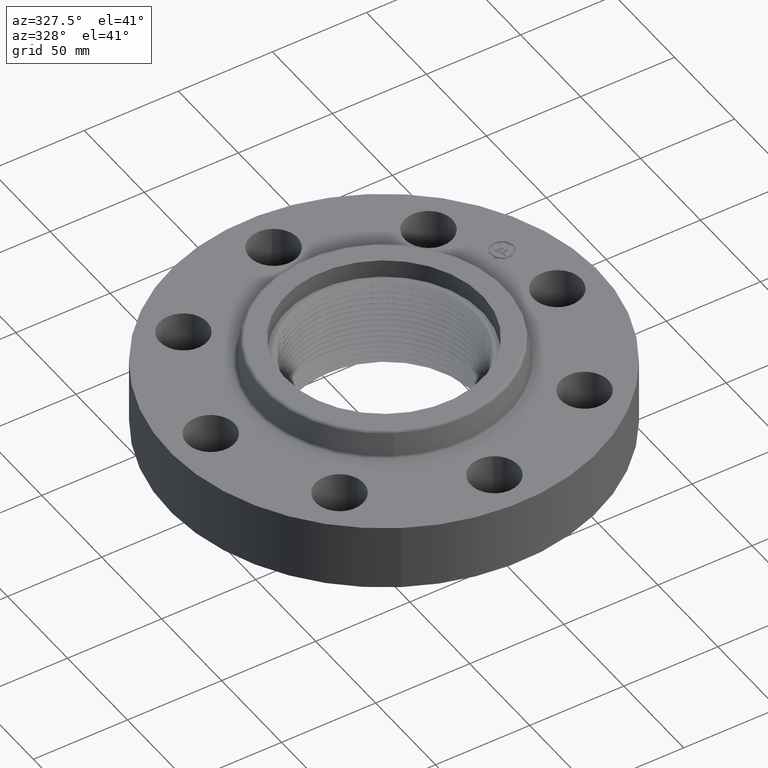
[diagram: clean part render]
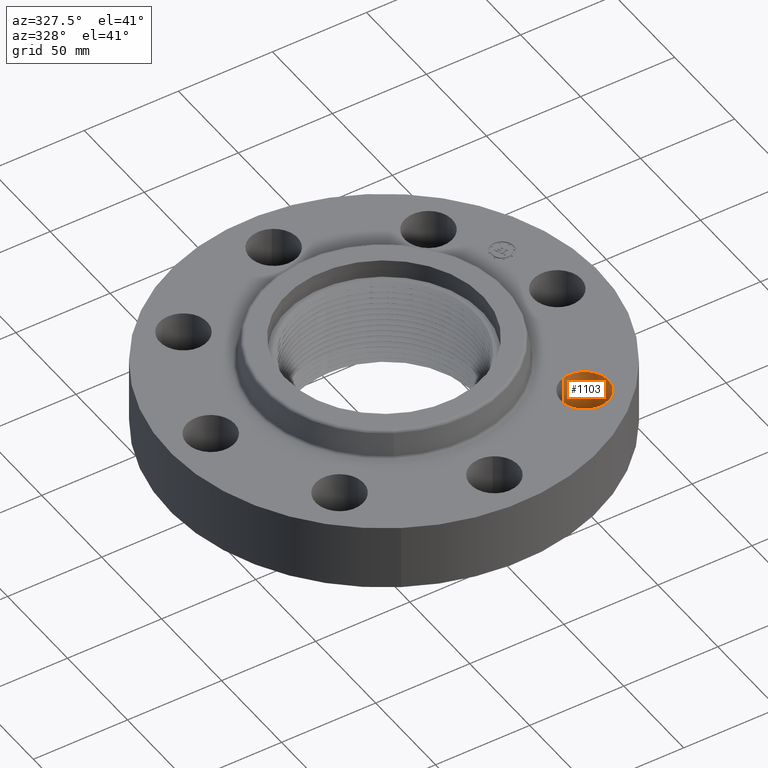
[diagram: same view with one face highlighted and labeled with its STEP entity id]
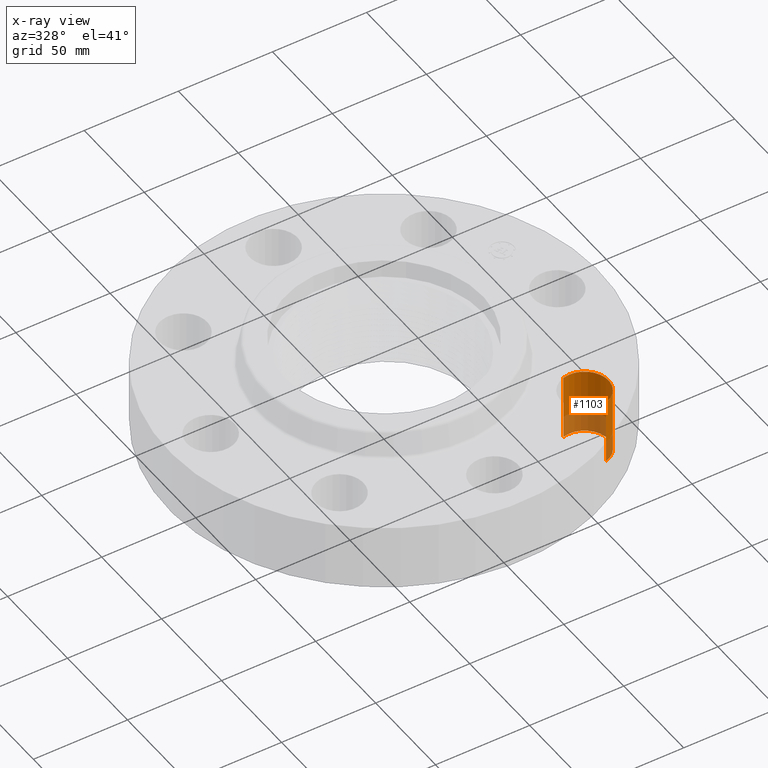
[diagram: x-ray of the same camera — body ghosted, the highlighted face saturated]
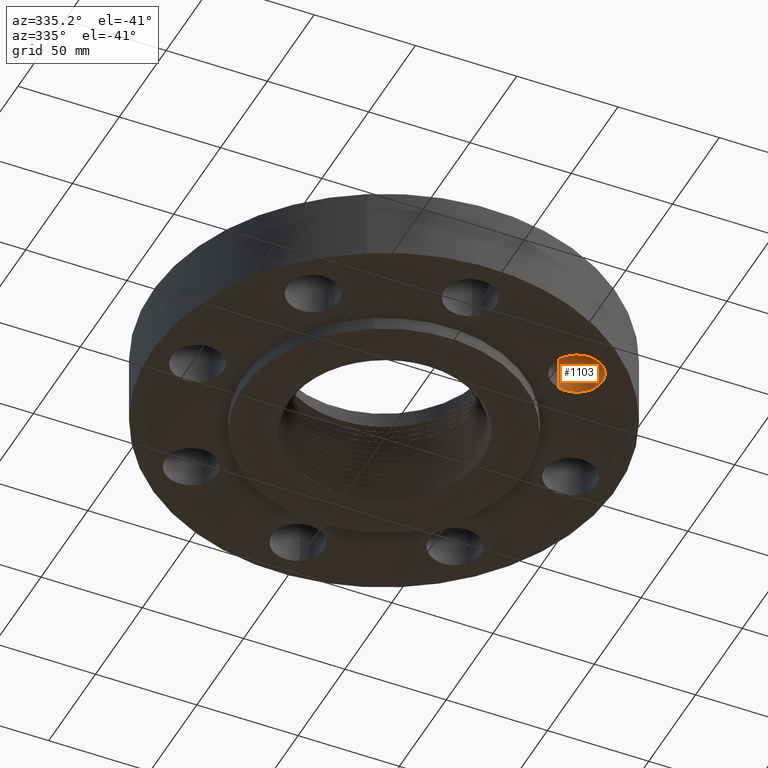
[diagram: same view with one face highlighted and labeled with its STEP entity id]
A machine part, auxiliary view. The second image highlights one B-rep face of the part: STEP entity #1103.
The next image is the same camera in x-ray: the body ghosted, the highlighted face saturated — about 32% of this face is hidden behind the body in this view.
A second angle (auxiliary view) of the same face is appended — the face is thin or edge-on in the first view.
In plain terms, the highlighted cylindrical surface (edge-blend (fillet) strip) has radius 12.7 mm, axis along (0, -0, -1).
Its self-contained STEP definition (entity closure, byte-faithful):
#690=AXIS2_PLACEMENT_3D('Circle Axis2P3D',#688,#689,$) ;
#1076=AXIS2_PLACEMENT_3D('Cylinder Axis2P3D',#1073,#1074,#1075) ;
#1094=AXIS2_PLACEMENT_3D('Circle Axis2P3D',#1092,#1093,$) ;
#688=CARTESIAN_POINT('Axis2P3D Location',(2.56326208181,-2.56326208181,0.)) ;
#692=CARTESIAN_POINT('Vertex',(2.42249231624,-2.08348726682,0.)) ;
#694=CARTESIAN_POINT('Vertex',(2.70403184738,-3.04303689681,0.)) ;
#1073=CARTESIAN_POINT('Axis2P3D Location',(2.56326208181,-2.56326208181,1.37606299213)) ;
#1078=CARTESIAN_POINT('Line Origine',(2.42249231624,-2.08348726682,0.690000000003)) ;
#1082=CARTESIAN_POINT('Vertex',(2.42249231624,-2.08348726682,1.38000000001)) ;
#1085=CARTESIAN_POINT('Line Origine',(2.70403184738,-3.04303689681,0.690000000003)) ;
#1089=CARTESIAN_POINT('Vertex',(2.70403184738,-3.04303689681,1.38000000001)) ;
#1092=CARTESIAN_POINT('Axis2P3D Location',(2.56326208181,-2.56326208181,1.38000000001)) ;
#689=DIRECTION('Axis2P3D Direction',(0.,0.,-0.0393700787402)) ;
#1074=DIRECTION('Axis2P3D Direction',(0.,-0.,-0.0393700787402)) ;
#1075=DIRECTION('Axis2P3D XDirection',(0.0110842335096,-0.0377775444876,0.)) ;
#1079=DIRECTION('Vector Direction',(0.,0.,-0.0393700787402)) ;
#1086=DIRECTION('Vector Direction',(0.,0.,-0.0393700787402)) ;
#1093=DIRECTION('Axis2P3D Direction',(0.,-0.,-0.0393700787402)) ;
#1080=VECTOR('Line Direction',#1079,0.0393700787402) ;
#1087=VECTOR('Line Direction',#1086,0.0393700787402) ;
#1098=ORIENTED_EDGE('',*,*,#1084,.F.) ;
#1099=ORIENTED_EDGE('',*,*,#696,.T.) ;
#1100=ORIENTED_EDGE('',*,*,#1091,.T.) ;
#1101=ORIENTED_EDGE('',*,*,#1096,.F.) ;
#1103=ADVANCED_FACE('PartBody',(#1102),#1077,.F.) ;
#691=CIRCLE('generated circle',#690,0.500000000002) ;
#1095=CIRCLE('generated circle',#1094,0.500000000002) ;
#1077=CYLINDRICAL_SURFACE('generated cylinder',#1076,0.500000000002) ;
#696=EDGE_CURVE('',#693,#695,#691,.T.) ;
#1084=EDGE_CURVE('',#693,#1083,#1081,.F.) ;
#1091=EDGE_CURVE('',#695,#1090,#1088,.F.) ;
#1096=EDGE_CURVE('',#1083,#1090,#1095,.T.) ;
#1097=EDGE_LOOP('',(#1098,#1099,#1100,#1101)) ;
#1102=FACE_OUTER_BOUND('',#1097,.T.) ;
#1081=LINE('Line',#1078,#1080) ;
#1088=LINE('Line',#1085,#1087) ;
#693=VERTEX_POINT('',#692) ;
#695=VERTEX_POINT('',#694) ;
#1083=VERTEX_POINT('',#1082) ;
#1090=VERTEX_POINT('',#1089) ;